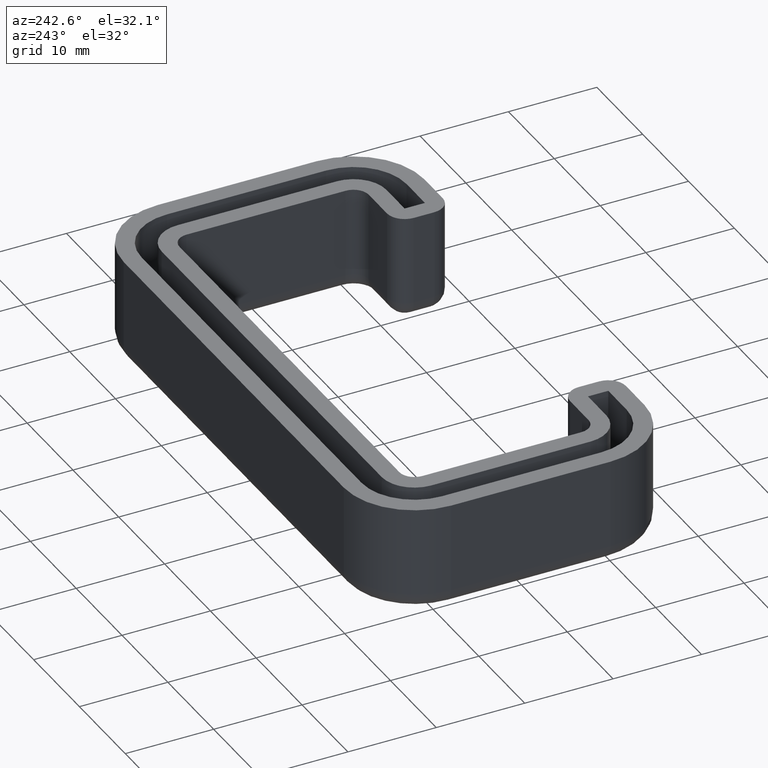
[diagram: clean part render]
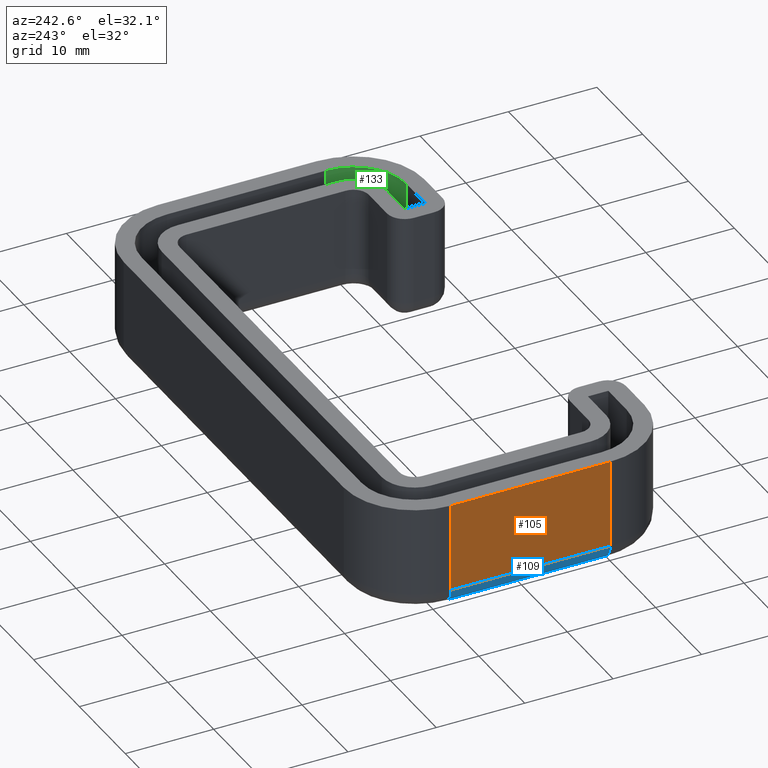
[diagram: same view with three faces highlighted in distinct colors, each labeled with its STEP entity id]
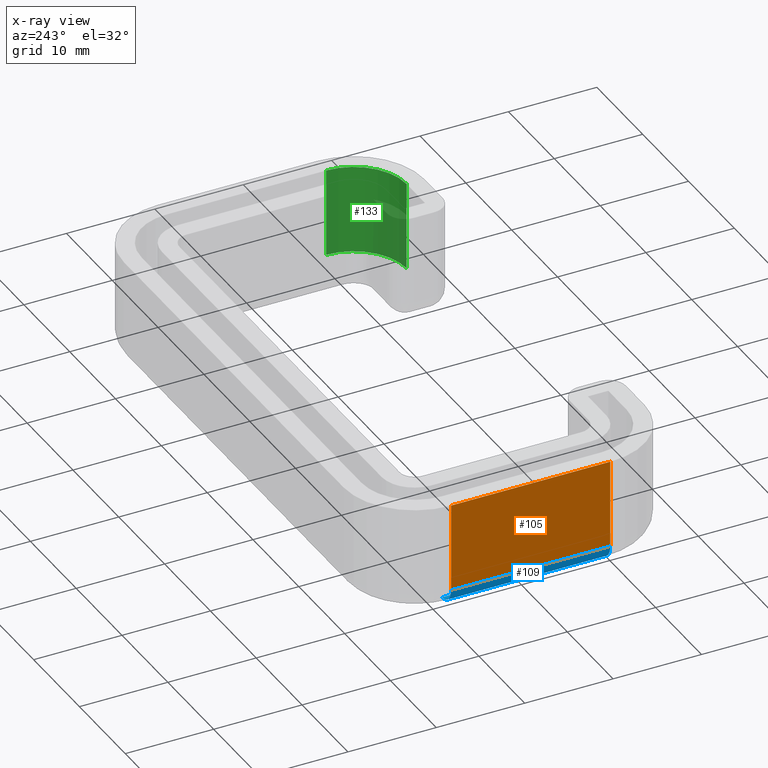
[diagram: x-ray of the same camera — body ghosted, the three highlighted faces saturated]
A machine part, auxiliary view with three faces highlighted in distinct colors.
The next image is the same camera in x-ray (body ghosted, the three faces saturated) — at least one of them is partly hidden behind the body in this view.
Their STEP definitions:

[orange] entity #105 — the highlighted planar face has unit normal (-1, 0, 0).
#105 = ADVANCED_FACE( '', ( #208 ), #209, .T. );
#208 = FACE_OUTER_BOUND( '', #351, .T. );
#209 = PLANE( '', #352 );
#351 = EDGE_LOOP( '', ( #714, #715, #716, #717 ) );
#352 = AXIS2_PLACEMENT_3D( '', #718, #719, #720 );
#714 = ORIENTED_EDGE( '', *, *, #1135, .T. );
#715 = ORIENTED_EDGE( '', *, *, #1136, .T. );
#716 = ORIENTED_EDGE( '', *, *, #1137, .F. );
#717 = ORIENTED_EDGE( '', *, *, #1020, .T. );
#718 = CARTESIAN_POINT( '', ( -32.0000000000000, -9.00000000000000, -3.46944695195361E-015 ) );
#719 = DIRECTION( '', ( -1.00000000000000, 2.96059473233375E-016, 0.000000000000000 ) );
#720 = DIRECTION( '', ( -2.96059473233375E-016, -1.00000000000000, 0.000000000000000 ) );
#1020 = EDGE_CURVE( '', #1219, #1217, #1220, .T. );
#1135 = EDGE_CURVE( '', #1217, #1417, #1419, .T. );
#1136 = EDGE_CURVE( '', #1417, #1370, #1420, .F. );
#1137 = EDGE_CURVE( '', #1219, #1370, #1421, .T. );
#1217 = VERTEX_POINT( '', #1512 );
#1219 = VERTEX_POINT( '', #1514 );
#1220 = LINE( '', #1515, #1516 );
#1370 = VERTEX_POINT( '', #1712 );
#1417 = VERTEX_POINT( '', #1783 );
#1419 = LINE( '', #1785, #1786 );
#1420 = LINE( '', #1787, #1788 );
#1421 = LINE( '', #1789, #1790 );
#1512 = CARTESIAN_POINT( '', ( -32.0000000000000, 9.00000000000001, -3.46944695195361E-015 ) );
#1514 = CARTESIAN_POINT( '', ( -32.0000000000000, -9.00000000000000, -3.46944695195361E-015 ) );
#1515 = CARTESIAN_POINT( '', ( -32.0000000000000, -9.00000000000000, -3.46944695195361E-015 ) );
#1516 = VECTOR( '', #1890, 1000.00000000000 );
#1712 = CARTESIAN_POINT( '', ( -32.0000000000000, -9.00000000000000, -10.0000000000000 ) );
#1783 = CARTESIAN_POINT( '', ( -32.0000000000000, 9.00000000000001, -10.0000000000000 ) );
#1785 = CARTESIAN_POINT( '', ( -32.0000000000000, 9.00000000000001, -3.46944695195361E-015 ) );
#1786 = VECTOR( '', #2093, 1000.00000000000 );
#1787 = CARTESIAN_POINT( '', ( -32.0000000000000, -9.00000000000000, -10.0000000000000 ) );
#1788 = VECTOR( '', #2094, 1000.00000000000 );
#1789 = CARTESIAN_POINT( '', ( -32.0000000000000, -9.00000000000000, -3.46944695195361E-015 ) );
#1790 = VECTOR( '', #2095, 1000.00000000000 );
#1890 = DIRECTION( '', ( 2.96059473233375E-016, 1.00000000000000, 0.000000000000000 ) );
#2093 = DIRECTION( '', ( 0.000000000000000, 0.000000000000000, -1.00000000000000 ) );
#2094 = DIRECTION( '', ( 2.96059473233375E-016, 1.00000000000000, 0.000000000000000 ) );
#2095 = DIRECTION( '', ( 0.000000000000000, 0.000000000000000, -1.00000000000000 ) );

[blue] entity #109 — the highlighted cylindrical surface (edge-blend (fillet) strip) has radius 2 mm, axis along (-0, -1, 0).
#109 = ADVANCED_FACE( '', ( #216 ), #217, .T. );
#216 = FACE_OUTER_BOUND( '', #359, .T. );
#217 = CYLINDRICAL_SURFACE( '', #360, 2.00000000000000 );
#359 = EDGE_LOOP( '', ( #741, #742, #743, #744 ) );
#360 = AXIS2_PLACEMENT_3D( '', #745, #746, #747 );
#741 = ORIENTED_EDGE( '', *, *, #1141, .T. );
#742 = ORIENTED_EDGE( '', *, *, #1082, .F. );
#743 = ORIENTED_EDGE( '', *, *, #1102, .F. );
#744 = ORIENTED_EDGE( '', *, *, #1136, .F. );
#745 = CARTESIAN_POINT( '', ( -30.0000000000000, -9.00000000000000, -10.0000000000000 ) );
#746 = DIRECTION( '', ( -2.96059473233375E-016, -1.00000000000000, 0.000000000000000 ) );
#747 = DIRECTION( '', ( -1.00000000000000, 2.96059473233375E-016, 0.000000000000000 ) );
#1082 = EDGE_CURVE( '', #1331, #1333, #1334, .T. );
#1102 = EDGE_CURVE( '', #1370, #1331, #1371, .T. );
#1136 = EDGE_CURVE( '', #1417, #1370, #1420, .F. );
#1141 = EDGE_CURVE( '', #1417, #1333, #1425, .T. );
#1331 = VERTEX_POINT( '', #1662 );
#1333 = VERTEX_POINT( '', #1664 );
#1334 = LINE( '', #1665, #1666 );
#1370 = VERTEX_POINT( '', #1712 );
#1371 = CIRCLE( '', #1713, 2.00000000000000 );
#1417 = VERTEX_POINT( '', #1783 );
#1420 = LINE( '', #1787, #1788 );
#1425 = CIRCLE( '', #1796, 2.00000000000000 );
#1662 = CARTESIAN_POINT( '', ( -30.0000000000000, -9.00000000000000, -12.0000000000000 ) );
#1664 = CARTESIAN_POINT( '', ( -30.0000000000000, 9.00000000000001, -12.0000000000000 ) );
#1665 = CARTESIAN_POINT( '', ( -30.0000000000000, -9.00000000000000, -12.0000000000000 ) );
#1666 = VECTOR( '', #2004, 1000.00000000000 );
#1712 = CARTESIAN_POINT( '', ( -32.0000000000000, -9.00000000000000, -10.0000000000000 ) );
#1713 = AXIS2_PLACEMENT_3D( '', #2042, #2043, #2044 );
#1783 = CARTESIAN_POINT( '', ( -32.0000000000000, 9.00000000000001, -10.0000000000000 ) );
#1787 = CARTESIAN_POINT( '', ( -32.0000000000000, -9.00000000000000, -10.0000000000000 ) );
#1788 = VECTOR( '', #2094, 1000.00000000000 );
#1796 = AXIS2_PLACEMENT_3D( '', #2101, #2102, #2103 );
#2004 = DIRECTION( '', ( 2.96059473233375E-016, 1.00000000000000, 0.000000000000000 ) );
#2042 = CARTESIAN_POINT( '', ( -30.0000000000000, -9.00000000000000, -10.0000000000000 ) );
#2043 = DIRECTION( '', ( -4.33680868994201E-016, -1.00000000000000, 7.52316384526264E-031 ) );
#2044 = DIRECTION( '', ( 1.00000000000000, -4.33680868994201E-016, 0.000000000000000 ) );
#2094 = DIRECTION( '', ( 2.96059473233375E-016, 1.00000000000000, 0.000000000000000 ) );
#2101 = CARTESIAN_POINT( '', ( -30.0000000000000, 9.00000000000001, -10.0000000000000 ) );
#2102 = DIRECTION( '', ( -1.73472347597681E-015, -1.00000000000000, 0.000000000000000 ) );
#2103 = DIRECTION( '', ( 1.00000000000000, -1.73472347597681E-015, 0.000000000000000 ) );

[green] entity #133 — the highlighted cylindrical surface (partial cylindrical patch) has radius 6 mm, axis along (0, 0, -1).
#133 = ADVANCED_FACE( '', ( #264 ), #265, .F. );
#264 = FACE_OUTER_BOUND( '', #407, .T. );
#265 = CYLINDRICAL_SURFACE( '', #408, 6.00000000000000 );
#407 = EDGE_LOOP( '', ( #907, #908, #909, #910 ) );
#408 = AXIS2_PLACEMENT_3D( '', #911, #912, #913 );
#907 = ORIENTED_EDGE( '', *, *, #1160, .F. );
#908 = ORIENTED_EDGE( '', *, *, #1059, .F. );
#909 = ORIENTED_EDGE( '', *, *, #1164, .F. );
#910 = ORIENTED_EDGE( '', *, *, #1038, .F. );
#911 = CARTESIAN_POINT( '', ( 24.0000000000000, -9.00000000000000, -10.0000000000000 ) );
#912 = DIRECTION( '', ( 0.000000000000000, 0.000000000000000, -1.00000000000000 ) );
#913 = DIRECTION( '', ( 0.707106781186547, -0.707106781186548, 0.000000000000000 ) );
#1038 = EDGE_CURVE( '', #1253, #1255, #1256, .T. );
#1059 = EDGE_CURVE( '', #1292, #1294, #1295, .T. );
#1160 = EDGE_CURVE( '', #1294, #1253, #1444, .T. );
#1164 = EDGE_CURVE( '', #1255, #1292, #1448, .T. );
#1253 = VERTEX_POINT( '', #1557 );
#1255 = VERTEX_POINT( '', #1560 );
#1256 = CIRCLE( '', #1561, 6.00000000000000 );
#1292 = VERTEX_POINT( '', #1612 );
#1294 = VERTEX_POINT( '', #1615 );
#1295 = CIRCLE( '', #1616, 6.00000000000000 );
#1444 = LINE( '', #1818, #1819 );
#1448 = LINE( '', #1826, #1827 );
#1557 = CARTESIAN_POINT( '', ( 30.0000000000000, -9.00000000000000, -3.46944695195361E-015 ) );
#1560 = CARTESIAN_POINT( '', ( 24.0000000000000, -15.0000000000000, -3.46944695195361E-015 ) );
#1561 = AXIS2_PLACEMENT_3D( '', #1924, #1925, #1926 );
#1612 = CARTESIAN_POINT( '', ( 24.0000000000000, -15.0000000000000, -10.0000000000000 ) );
#1615 = CARTESIAN_POINT( '', ( 30.0000000000000, -9.00000000000000, -10.0000000000000 ) );
#1616 = AXIS2_PLACEMENT_3D( '', #1955, #1956, #1957 );
#1818 = CARTESIAN_POINT( '', ( 30.0000000000000, -9.00000000000000, -10.0000000000000 ) );
#1819 = VECTOR( '', #2152, 1000.00000000000 );
#1826 = CARTESIAN_POINT( '', ( 24.0000000000000, -15.0000000000000, -10.0000000000000 ) );
#1827 = VECTOR( '', #2156, 1000.00000000000 );
#1924 = CARTESIAN_POINT( '', ( 24.0000000000000, -9.00000000000000, -3.46944695195361E-015 ) );
#1925 = DIRECTION( '', ( 0.000000000000000, 0.000000000000000, -1.00000000000000 ) );
#1926 = DIRECTION( '', ( -1.00000000000000, 0.000000000000000, 0.000000000000000 ) );
#1955 = CARTESIAN_POINT( '', ( 24.0000000000000, -9.00000000000000, -10.0000000000000 ) );
#1956 = DIRECTION( '', ( 0.000000000000000, 0.000000000000000, 1.00000000000000 ) );
#1957 = DIRECTION( '', ( 0.707106781186547, -0.707106781186548, 0.000000000000000 ) );
#2152 = DIRECTION( '', ( 0.000000000000000, 0.000000000000000, 1.00000000000000 ) );
#2156 = DIRECTION( '', ( 0.000000000000000, 0.000000000000000, -1.00000000000000 ) );